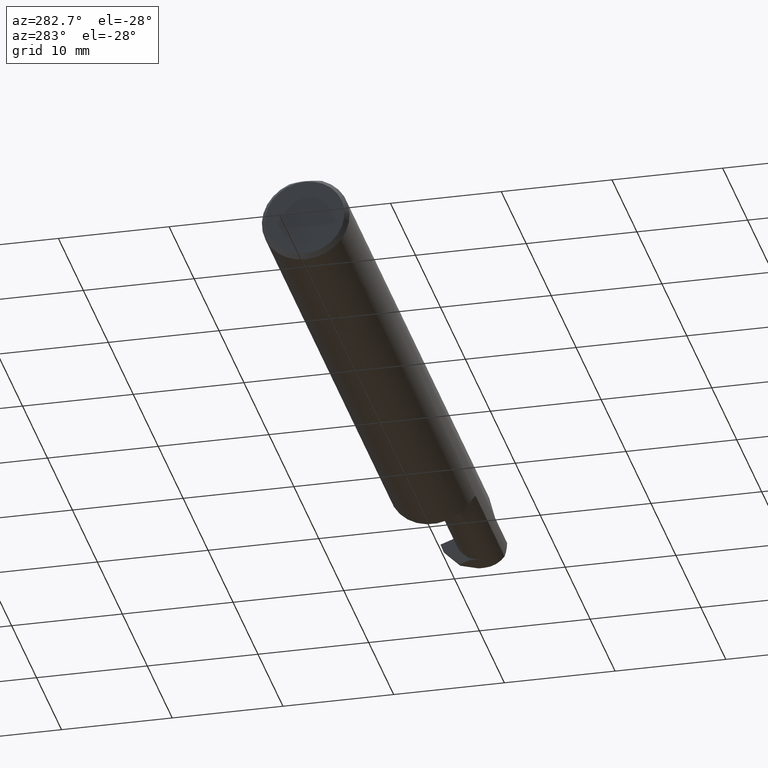
[diagram: clean part render]
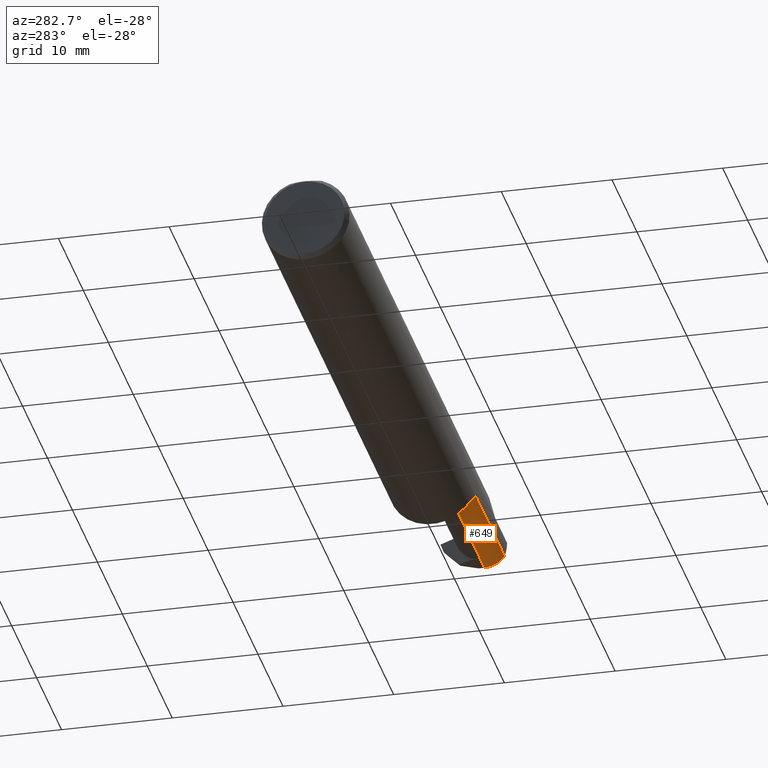
[diagram: same view with one face highlighted and labeled with its STEP entity id]
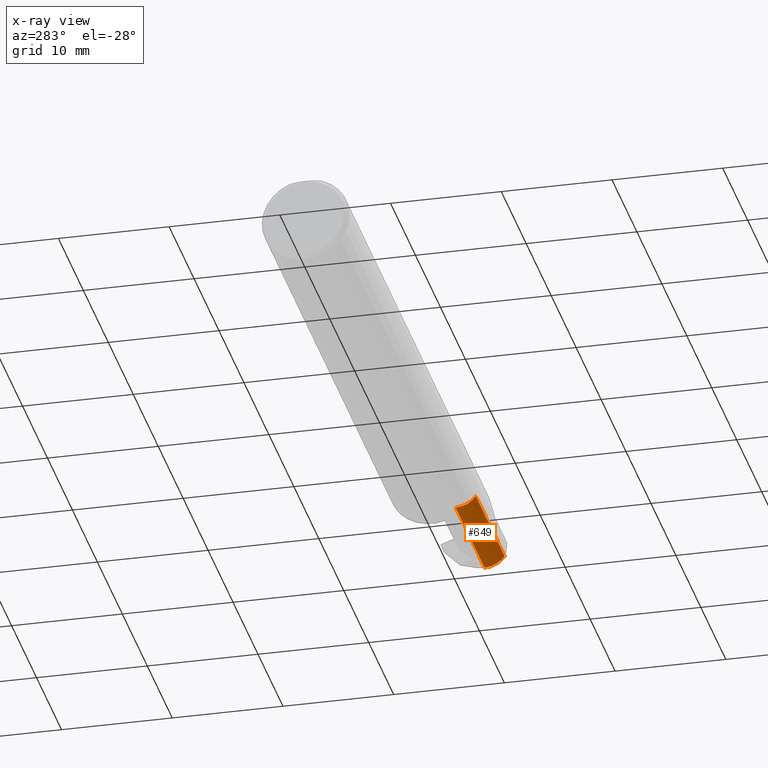
[diagram: x-ray of the same camera — body ghosted, the highlighted face saturated]
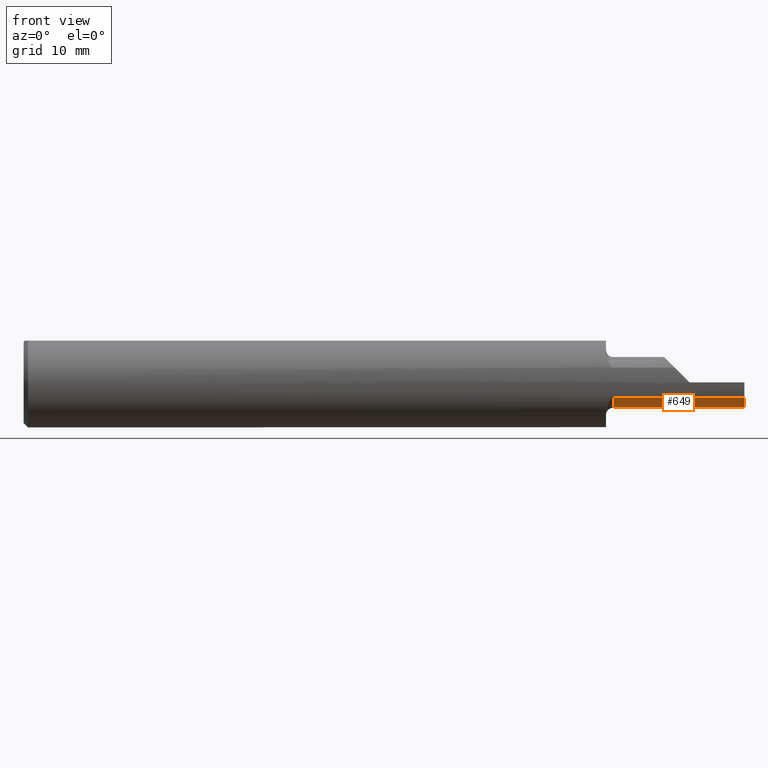
[diagram: same view with one face highlighted and labeled with its STEP entity id]
A machine part, auxiliary view. The second image highlights one B-rep face of the part: STEP entity #649.
The next image is the same camera in x-ray: the body ghosted, the highlighted face saturated — about 0% of this face is hidden behind the body in this view.
A second angle (front view) of the same face is appended — the face is thin or edge-on in the first view.
In plain terms, the highlighted cylindrical surface (edge-blend (fillet) strip) has radius 2.2352 mm, axis along (-1, -0, -0).
Its self-contained STEP definition (entity closure, byte-faithful):
#47 = LINE ( 'NONE', #672, #523 ) ;
#55 = FACE_OUTER_BOUND ( 'NONE', #59, .T. ) ;
#59 = EDGE_LOOP ( 'NONE', ( #497, #825, #538, #128, #582 ) ) ;
#68 = AXIS2_PLACEMENT_3D ( 'NONE', #431, #828, #595 ) ;
#84 = EDGE_CURVE ( 'NONE', #175, #686, #931, .T. ) ;
#112 = CIRCLE ( 'NONE', #68, 0.08799999999999999489 ) ;
#124 = EDGE_CURVE ( 'NONE', #686, #258, #47, .T. ) ;
#128 = ORIENTED_EDGE ( 'NONE', *, *, #900, .T. ) ;
#174 = LINE ( 'NONE', #467, #658 ) ;
#175 = VERTEX_POINT ( 'NONE', #306 ) ;
#186 = AXIS2_PLACEMENT_3D ( 'NONE', #641, #325, #822 ) ;
#196 = DIRECTION ( 'NONE',  ( 0.000000000000000000, 0.000000000000000000, 1.000000000000000000 ) ) ;
#258 = VERTEX_POINT ( 'NONE', #673 ) ;
#306 = CARTESIAN_POINT ( 'NONE',  ( 2.500000000000000000, -0.07609999999999991771, -0.08799999999999999489 ) ) ;
#325 = DIRECTION ( 'NONE',  ( 1.000000000000000000, 0.000000000000000000, 0.000000000000000000 ) ) ;
#340 = DIRECTION ( 'NONE',  ( -1.000000000000000000, -0.000000000000000000, -0.000000000000000000 ) ) ;
#431 = CARTESIAN_POINT ( 'NONE',  ( 2.500000000000000000, -0.07609999999999990383, 0.000000000000000000 ) ) ;
#436 = DIRECTION ( 'NONE',  ( -1.000000000000000000, -0.000000000000000000, -0.000000000000000000 ) ) ;
#467 = CARTESIAN_POINT ( 'NONE',  ( 2.221000000000000085, -0.1472695137976346991, -0.05175809410911754588 ) ) ;
#473 = CIRCLE ( 'NONE', #186, 0.08799999999999999489 ) ;
#497 = ORIENTED_EDGE ( 'NONE', *, *, #124, .F. ) ;
#513 = VERTEX_POINT ( 'NONE', #859 ) ;
#523 = VECTOR ( 'NONE', #436, 39.37007874015748143 ) ;
#538 = ORIENTED_EDGE ( 'NONE', *, *, #541, .F. ) ;
#541 = EDGE_CURVE ( 'NONE', #513, #175, #112, .T. ) ;
#568 = AXIS2_PLACEMENT_3D ( 'NONE', #888, #978, #196 ) ;
#582 = ORIENTED_EDGE ( 'NONE', *, *, #981, .T. ) ;
#595 = DIRECTION ( 'NONE',  ( 0.000000000000000000, 0.000000000000000000, 1.000000000000000000 ) ) ;
#641 = CARTESIAN_POINT ( 'NONE',  ( 2.044999999999999929, -0.07609999999999990383, 0.000000000000000000 ) ) ;
#645 = DIRECTION ( 'NONE',  ( -1.000000000000000000, -0.000000000000000000, -0.000000000000000000 ) ) ;
#649 = ADVANCED_FACE ( 'NONE', ( #55 ), #897, .T. ) ;
#658 = VECTOR ( 'NONE', #340, 39.37007874015748143 ) ;
#672 = CARTESIAN_POINT ( 'NONE',  ( 2.020000000000000018, -0.07609999999999990383, -0.08799999999999999489 ) ) ;
#673 = CARTESIAN_POINT ( 'NONE',  ( 2.044999999999999929, -0.07609999999999990383, -0.08799999999999999489 ) ) ;
#686 = VERTEX_POINT ( 'NONE', #752 ) ;
#752 = CARTESIAN_POINT ( 'NONE',  ( 2.435706988345931023, -0.07609999999999991771, -0.08799999999999999489 ) ) ;
#822 = DIRECTION ( 'NONE',  ( 0.000000000000000000, 0.000000000000000000, -1.000000000000000000 ) ) ;
#823 = VERTEX_POINT ( 'NONE', #918 ) ;
#825 = ORIENTED_EDGE ( 'NONE', *, *, #84, .F. ) ;
#828 = DIRECTION ( 'NONE',  ( 1.000000000000000000, -0.000000000000000000, -0.000000000000000000 ) ) ;
#833 = VECTOR ( 'NONE', #645, 39.37007874015748143 ) ;
#859 = CARTESIAN_POINT ( 'NONE',  ( 2.500000000000000000, -0.1472695137976346991, -0.05175809410911760139 ) ) ;
#888 = CARTESIAN_POINT ( 'NONE',  ( 2.020000000000000018, -0.07609999999999990383, 0.000000000000000000 ) ) ;
#897 = CYLINDRICAL_SURFACE ( 'NONE', #568, 0.08799999999999999489 ) ;
#900 = EDGE_CURVE ( 'NONE', #513, #823, #174, .T. ) ;
#918 = CARTESIAN_POINT ( 'NONE',  ( 2.044999999999999929, -0.1472695137976346991, -0.05175809410911754588 ) ) ;
#931 = LINE ( 'NONE', #947, #833 ) ;
#947 = CARTESIAN_POINT ( 'NONE',  ( 2.500000000000000000, -0.07609999999999991771, -0.08799999999999999489 ) ) ;
#978 = DIRECTION ( 'NONE',  ( -1.000000000000000000, -0.000000000000000000, -0.000000000000000000 ) ) ;
#981 = EDGE_CURVE ( 'NONE', #823, #258, #473, .T. ) ;